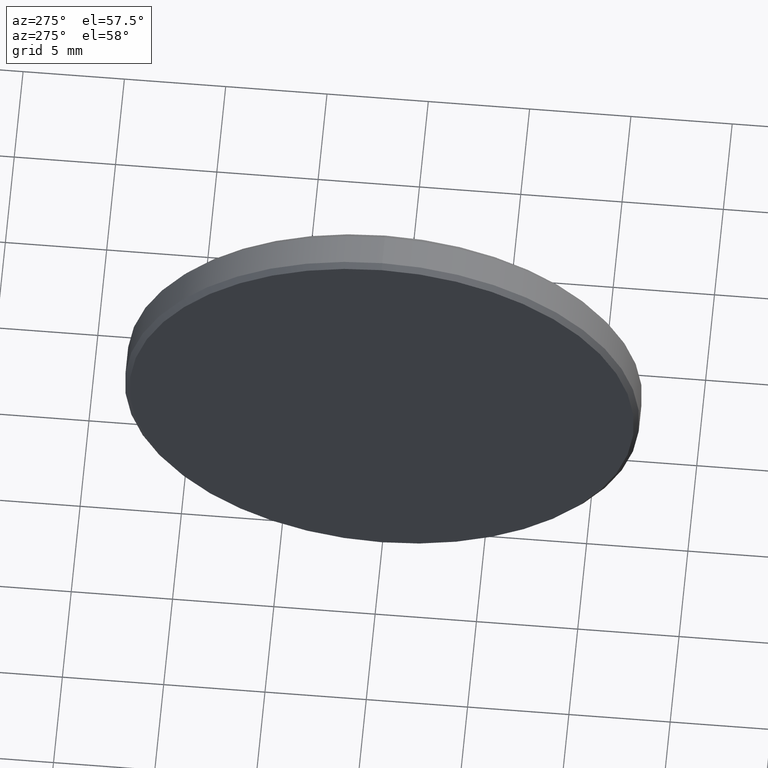
[diagram: clean part render]
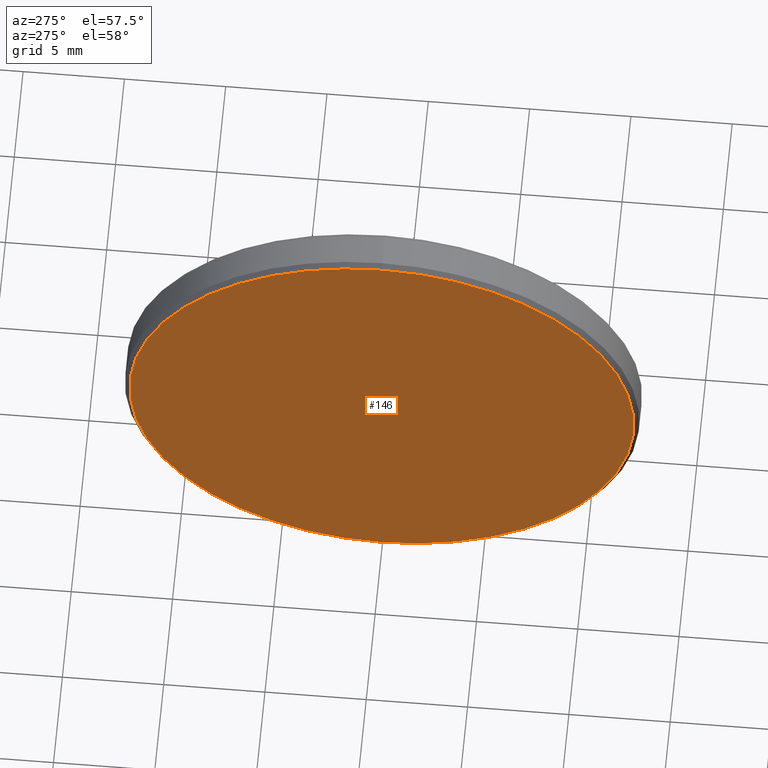
[diagram: same view with one face highlighted and labeled with its STEP entity id]
A machine part, auxiliary view. The second image highlights one B-rep face of the part: STEP entity #146.
In plain terms, the highlighted planar face has unit normal (1, 0, 0).
Its self-contained STEP definition (entity closure, byte-faithful):
#7 = ORIENTED_EDGE ( 'NONE', *, *, #132, .T. ) ;
#28 = CARTESIAN_POINT ( 'NONE',  ( -1.300000000000000000, 0.0000000000000000000, 0.0000000000000000000 ) ) ;
#46 = AXIS2_PLACEMENT_3D ( 'NONE', #182, #151, #184 ) ;
#87 = AXIS2_PLACEMENT_3D ( 'NONE', #28, #199, #112 ) ;
#102 = EDGE_LOOP ( 'NONE', ( #7, #291 ) ) ;
#112 = DIRECTION ( 'NONE',  ( 0.0000000000000000000, 0.0000000000000000000, -1.000000000000000000 ) ) ;
#122 = CIRCLE ( 'NONE', #188, 12.44999999999999800 ) ;
#126 = CARTESIAN_POINT ( 'NONE',  ( -1.300000000000000000, 1.539993349927796500E-015, 12.44999999999999800 ) ) ;
#129 = CIRCLE ( 'NONE', #87, 12.44999999999999800 ) ;
#132 = EDGE_CURVE ( 'NONE', #263, #205, #129, .T. ) ;
#146 = ADVANCED_FACE ( 'NONE', ( #271 ), #299, .F. ) ;
#151 = DIRECTION ( 'NONE',  ( 1.000000000000000000, 0.0000000000000000000, 0.0000000000000000000 ) ) ;
#182 = CARTESIAN_POINT ( 'NONE',  ( -1.300000000000000000, 0.0000000000000000000, 0.0000000000000000000 ) ) ;
#184 = DIRECTION ( 'NONE',  ( 0.0000000000000000000, 0.0000000000000000000, -1.000000000000000000 ) ) ;
#188 = AXIS2_PLACEMENT_3D ( 'NONE', #262, #260, #254 ) ;
#199 = DIRECTION ( 'NONE',  ( -1.000000000000000000, -0.0000000000000000000, -0.0000000000000000000 ) ) ;
#205 = VERTEX_POINT ( 'NONE', #126 ) ;
#246 = CARTESIAN_POINT ( 'NONE',  ( -1.300000000000000000, 0.0000000000000000000, -12.44999999999999800 ) ) ;
#254 = DIRECTION ( 'NONE',  ( 0.0000000000000000000, 0.0000000000000000000, -1.000000000000000000 ) ) ;
#260 = DIRECTION ( 'NONE',  ( -1.000000000000000000, -0.0000000000000000000, -0.0000000000000000000 ) ) ;
#262 = CARTESIAN_POINT ( 'NONE',  ( -1.300000000000000000, 0.0000000000000000000, 0.0000000000000000000 ) ) ;
#263 = VERTEX_POINT ( 'NONE', #246 ) ;
#271 = FACE_OUTER_BOUND ( 'NONE', #102, .T. ) ;
#281 = EDGE_CURVE ( 'NONE', #205, #263, #122, .T. ) ;
#291 = ORIENTED_EDGE ( 'NONE', *, *, #281, .T. ) ;
#299 = PLANE ( 'NONE',  #46 ) ;